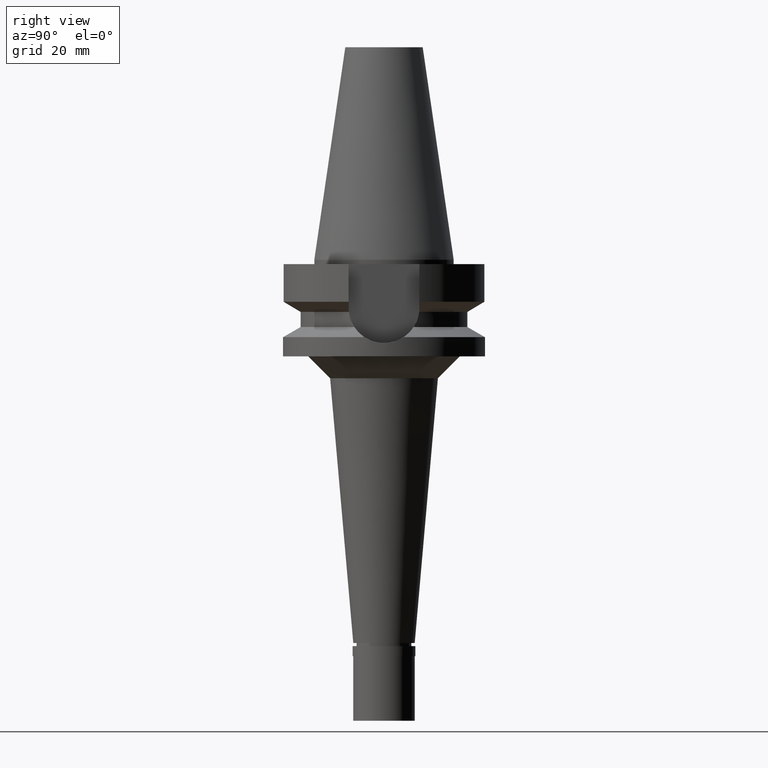
[diagram: clean part render]
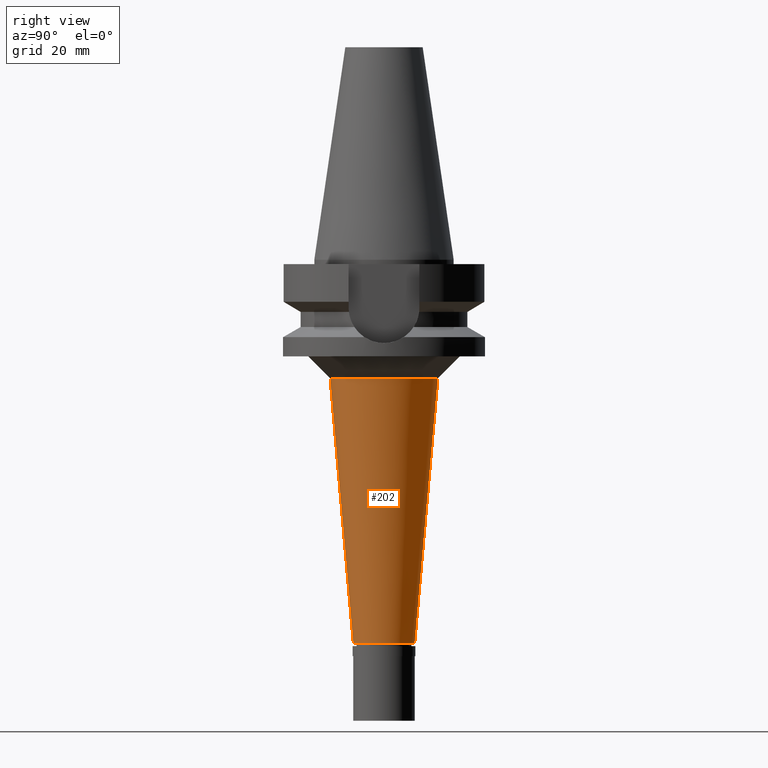
[diagram: same view with one face highlighted and labeled with its STEP entity id]
A machine part, right view. The second image highlights one B-rep face of the part: STEP entity #202.
In plain terms, the highlighted conical surface has half-angle 5 deg.
Its self-contained STEP definition (entity closure, byte-faithful):
#108 = ORIENTED_EDGE ( 'NONE', *, *, #658, .F. ) ;
#133 = CARTESIAN_POINT ( 'NONE',  ( 0.0000000000000000000, -12.27556641060999887, -27.00000000000000000 ) ) ;
#202 = ADVANCED_FACE ( 'NONE', ( #1479 ), #1323, .T. ) ;
#213 = AXIS2_PLACEMENT_3D ( 'NONE', #437, #2204, #1346 ) ;
#284 = CIRCLE ( 'NONE', #568, 12.27556641060999887 ) ;
#298 = DIRECTION ( 'NONE',  ( 0.0000000000000000000, 0.0000000000000000000, 1.000000000000000000 ) ) ;
#437 = CARTESIAN_POINT ( 'NONE',  ( 0.0000000000000000000, 0.0000000000000000000, -87.29999999999999716 ) ) ;
#568 = AXIS2_PLACEMENT_3D ( 'NONE', #1508, #595, #1481 ) ;
#595 = DIRECTION ( 'NONE',  ( 0.0000000000000000000, 0.0000000000000000000, 1.000000000000000000 ) ) ;
#658 = EDGE_CURVE ( 'NONE', #2084, #1092, #1391, .T. ) ;
#689 = ORIENTED_EDGE ( 'NONE', *, *, #873, .T. ) ;
#701 = AXIS2_PLACEMENT_3D ( 'NONE', #2842, #298, #2823 ) ;
#709 = DIRECTION ( 'NONE',  ( 0.0000000000000000000, -0.08715574274763414342, -0.9961946980917475436 ) ) ;
#814 = VERTEX_POINT ( 'NONE', #133 ) ;
#843 = ORIENTED_EDGE ( 'NONE', *, *, #852, .F. ) ;
#849 = VERTEX_POINT ( 'NONE', #2856 ) ;
#852 = EDGE_CURVE ( 'NONE', #814, #2084, #284, .T. ) ;
#873 = EDGE_CURVE ( 'NONE', #814, #849, #1962, .T. ) ;
#1092 = VERTEX_POINT ( 'NONE', #2811 ) ;
#1323 = CONICAL_SURFACE ( 'NONE', #701, 9.637783205306998724, 0.08726646259969973729 ) ;
#1346 = DIRECTION ( 'NONE',  ( 0.0000000000000000000, -1.000000000000000000, 0.0000000000000000000 ) ) ;
#1391 = LINE ( 'NONE', #2756, #2805 ) ;
#1479 = FACE_OUTER_BOUND ( 'NONE', #1826, .T. ) ;
#1481 = DIRECTION ( 'NONE',  ( 0.0000000000000000000, -1.000000000000000000, 0.0000000000000000000 ) ) ;
#1508 = CARTESIAN_POINT ( 'NONE',  ( 0.0000000000000000000, 0.0000000000000000000, -27.00000000000000000 ) ) ;
#1733 = EDGE_CURVE ( 'NONE', #849, #1092, #2787, .T. ) ;
#1826 = EDGE_LOOP ( 'NONE', ( #843, #689, #2903, #108 ) ) ;
#1962 = LINE ( 'NONE', #2634, #2420 ) ;
#2084 = VERTEX_POINT ( 'NONE', #2802 ) ;
#2204 = DIRECTION ( 'NONE',  ( 0.0000000000000000000, 0.0000000000000000000, 1.000000000000000000 ) ) ;
#2403 = DIRECTION ( 'NONE',  ( 0.0000000000000000000, 0.08715574274763414342, -0.9961946980917475436 ) ) ;
#2420 = VECTOR ( 'NONE', #2403, 1000.000000000000114 ) ;
#2634 = CARTESIAN_POINT ( 'NONE',  ( 0.0000000000000000000, -12.27556641060999887, -27.00000000000000000 ) ) ;
#2756 = CARTESIAN_POINT ( 'NONE',  ( 0.0000000000000000000, 12.27556641060999887, -27.00000000000000000 ) ) ;
#2787 = CIRCLE ( 'NONE', #213, 7.000000000000000000 ) ;
#2802 = CARTESIAN_POINT ( 'NONE',  ( 0.0000000000000000000, 12.27556641060999887, -27.00000000000000000 ) ) ;
#2805 = VECTOR ( 'NONE', #709, 1000.000000000000114 ) ;
#2811 = CARTESIAN_POINT ( 'NONE',  ( 0.0000000000000000000, 7.000000000000000000, -87.29999999999999716 ) ) ;
#2823 = DIRECTION ( 'NONE',  ( 0.0000000000000000000, 1.000000000000000000, 0.0000000000000000000 ) ) ;
#2842 = CARTESIAN_POINT ( 'NONE',  ( 0.0000000000000000000, 0.0000000000000000000, -57.14999999999999858 ) ) ;
#2856 = CARTESIAN_POINT ( 'NONE',  ( 0.0000000000000000000, -7.000000000000000000, -87.29999999999999716 ) ) ;
#2903 = ORIENTED_EDGE ( 'NONE', *, *, #1733, .T. ) ;